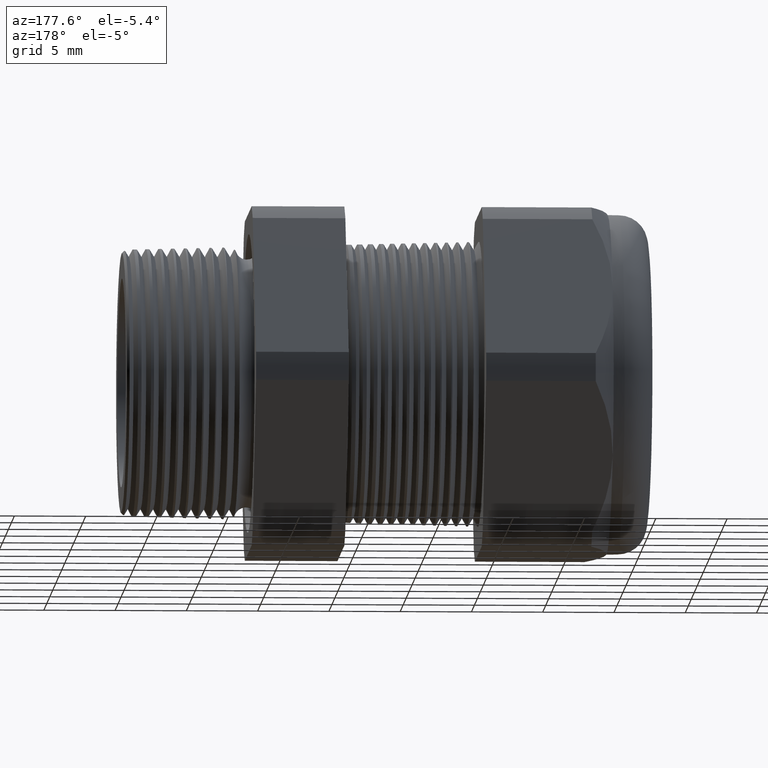
[diagram: clean part render]
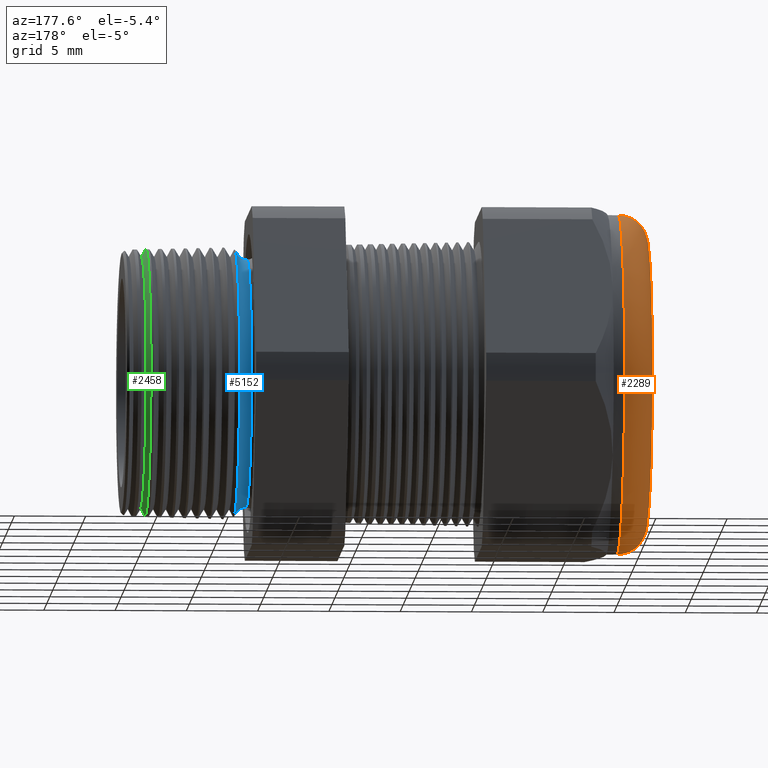
[diagram: same view with three faces highlighted in distinct colors, each labeled with its STEP entity id]
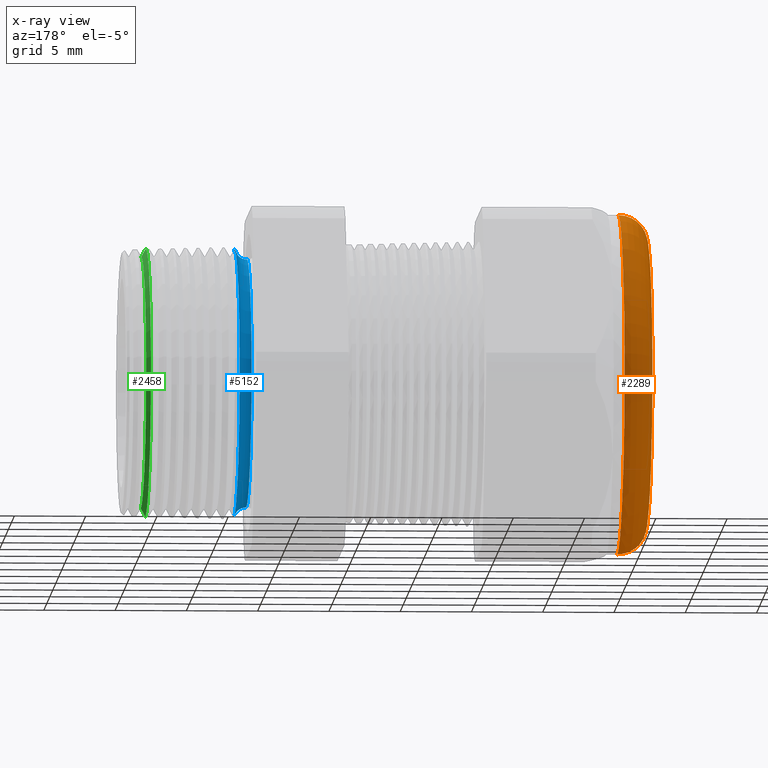
[diagram: x-ray of the same camera — body ghosted, the three highlighted faces saturated]
A machine part, auxiliary view with three faces highlighted in distinct colors.
The next image is the same camera in x-ray (body ghosted, the three faces saturated) — at least one of them is partly hidden behind the body in this view.
Their STEP definitions:

[orange] entity #2289 — the highlighted toroidal blend (fillet) surface has major radius 9.906 mm and minor (blend) radius 2.032 mm.
#2289 = ADVANCED_FACE ( 'NONE', ( #4230 ), #4229, .T. ) ;
#2290 = EDGE_LOOP ( 'NONE', ( #2295, #2299, #2353, #2358 ) ) ;
#2295 = ORIENTED_EDGE ( 'NONE', *, *, #2296, .F. ) ;
#2296 = EDGE_CURVE ( 'NONE', #2297, #2298, #4219, .T. ) ;
#2297 = VERTEX_POINT ( 'NONE', #4214 ) ;
#2298 = VERTEX_POINT ( 'NONE', #4213 ) ;
#2299 = ORIENTED_EDGE ( 'NONE', *, *, #2300, .T. ) ;
#2300 = EDGE_CURVE ( 'NONE', #2297, #2301, #4212, .T. ) ;
#2301 = VERTEX_POINT ( 'NONE', #4269 ) ;
#2353 = ORIENTED_EDGE ( 'NONE', *, *, #2355, .F. ) ;
#2355 = EDGE_CURVE ( 'NONE', #2356, #2301, #4357, .T. ) ;
#2356 = VERTEX_POINT ( 'NONE', #4352 ) ;
#2358 = ORIENTED_EDGE ( 'NONE', *, *, #2359, .F. ) ;
#2359 = EDGE_CURVE ( 'NONE', #2298, #2356, #4351, .T. ) ;
#4208 = DIRECTION ( 'NONE',  ( 0.0000000000000000000, -1.224646799147353900E-016, 1.000000000000000000 ) ) ;
#4209 = DIRECTION ( 'NONE',  ( 0.0000000000000000000, 1.000000000000000000, 1.224646799147353200E-016 ) ) ;
#4210 = CARTESIAN_POINT ( 'NONE',  ( -1.330000000000000100, 4.776122516674676800E-017, -0.3899999999999999600 ) ) ;
#4211 = AXIS2_PLACEMENT_3D ( 'NONE', #4210, #4209, #4208 ) ;
#4212 = CIRCLE ( 'NONE', #4211, 0.07999999999999996000 ) ;
#4213 = CARTESIAN_POINT ( 'NONE',  ( -1.330000000000000100, 5.755839955992558400E-017, 0.4699999999999999200 ) ) ;
#4214 = CARTESIAN_POINT ( 'NONE',  ( -1.330000000000000100, 0.0000000000000000000, -0.4699999999999999200 ) ) ;
#4215 = DIRECTION ( 'NONE',  ( 0.0000000000000000000, 0.0000000000000000000, 1.000000000000000000 ) ) ;
#4216 = DIRECTION ( 'NONE',  ( 1.000000000000000000, 0.0000000000000000000, 0.0000000000000000000 ) ) ;
#4217 = CARTESIAN_POINT ( 'NONE',  ( -1.330000000000000100, 0.0000000000000000000, 0.0000000000000000000 ) ) ;
#4218 = AXIS2_PLACEMENT_3D ( 'NONE', #4217, #4216, #4215 ) ;
#4219 = CIRCLE ( 'NONE', #4218, 0.4699999999999999200 ) ;
#4225 = DIRECTION ( 'NONE',  ( 0.0000000000000000000, 0.0000000000000000000, 1.000000000000000000 ) ) ;
#4226 = DIRECTION ( 'NONE',  ( -1.000000000000000000, 0.0000000000000000000, 0.0000000000000000000 ) ) ;
#4227 = CARTESIAN_POINT ( 'NONE',  ( -1.330000000000000100, 0.0000000000000000000, 0.0000000000000000000 ) ) ;
#4228 = AXIS2_PLACEMENT_3D ( 'NONE', #4227, #4226, #4225 ) ;
#4229 = TOROIDAL_SURFACE ( 'NONE', #4228, 0.3899999999999999600, 0.08000000000000000200 ) ;
#4230 = FACE_OUTER_BOUND ( 'NONE', #2290, .T. ) ;
#4269 = CARTESIAN_POINT ( 'NONE',  ( -1.409999999999999900, 5.265981236333617600E-017, -0.3899999999999999600 ) ) ;
#4347 = DIRECTION ( 'NONE',  ( 0.0000000000000000000, 0.0000000000000000000, -1.000000000000000000 ) ) ;
#4348 = DIRECTION ( 'NONE',  ( 0.0000000000000000000, -1.000000000000000000, 0.0000000000000000000 ) ) ;
#4349 = CARTESIAN_POINT ( 'NONE',  ( -1.330000000000000100, 0.0000000000000000000, 0.3899999999999999600 ) ) ;
#4350 = AXIS2_PLACEMENT_3D ( 'NONE', #4349, #4348, #4347 ) ;
#4351 = CIRCLE ( 'NONE', #4350, 0.07999999999999996000 ) ;
#4352 = CARTESIAN_POINT ( 'NONE',  ( -1.409999999999999900, 0.0000000000000000000, 0.3899999999999999600 ) ) ;
#4353 = DIRECTION ( 'NONE',  ( 0.0000000000000000000, 0.0000000000000000000, 1.000000000000000000 ) ) ;
#4354 = DIRECTION ( 'NONE',  ( -1.000000000000000000, 0.0000000000000000000, 0.0000000000000000000 ) ) ;
#4355 = CARTESIAN_POINT ( 'NONE',  ( -1.409999999999999900, 0.0000000000000000000, 0.0000000000000000000 ) ) ;
#4356 = AXIS2_PLACEMENT_3D ( 'NONE', #4355, #4354, #4353 ) ;
#4357 = CIRCLE ( 'NONE', #4356, 0.3899999999999999600 ) ;

[blue] entity #5152 — the highlighted toroidal blend (fillet) surface has major radius 9.6104 mm and minor (blend) radius 0.889 mm.
#6 = ORIENTED_EDGE ( 'NONE', *, *, #2125, .F. ) ;
#24 = VERTEX_POINT ( 'NONE', #3910 ) ;
#26 = VERTEX_POINT ( 'NONE', #3909 ) ;
#1925 = DIRECTION ( 'NONE',  ( 0.0000000000000000000, 0.0000000000000000000, -1.000000000000000000 ) ) ;
#1926 = DIRECTION ( 'NONE',  ( 0.0000000000000000000, -1.000000000000000000, 0.0000000000000000000 ) ) ;
#1927 = CARTESIAN_POINT ( 'NONE',  ( -0.3049999999999999400, 0.0000000000000000000, -0.3783605994438361000 ) ) ;
#1928 = AXIS2_PLACEMENT_3D ( 'NONE', #1927, #1926, #1925 ) ;
#1929 = CIRCLE ( 'NONE', #1928, 0.03499999999999996900 ) ;
#1931 = CARTESIAN_POINT ( 'NONE',  ( -0.3049999999999999400, 0.0000000000000000000, -0.3433605994438361200 ) ) ;
#1932 = CARTESIAN_POINT ( 'NONE',  ( -0.2708463023710456800, 4.539893538562447500E-017, -0.3707104400814421600 ) ) ;
#2030 = DIRECTION ( 'NONE',  ( 0.0000000000000000000, 0.0000000000000000000, -1.000000000000000000 ) ) ;
#2031 = DIRECTION ( 'NONE',  ( 1.000000000000000000, 0.0000000000000000000, 0.0000000000000000000 ) ) ;
#2032 = CARTESIAN_POINT ( 'NONE',  ( -0.3049999999999999400, 0.0000000000000000000, 0.0000000000000000000 ) ) ;
#2033 = AXIS2_PLACEMENT_3D ( 'NONE', #2032, #2031, #2030 ) ;
#2034 = TOROIDAL_SURFACE ( 'NONE', #2033, 0.3783605994438361000, 0.03499999999999994800 ) ;
#2035 = FACE_OUTER_BOUND ( 'NONE', #5143, .T. ) ;
#2125 = EDGE_CURVE ( 'NONE', #26, #24, #3899, .T. ) ;
#2581 = EDGE_CURVE ( 'NONE', #5096, #26, #4781, .T. ) ;
#2639 = ORIENTED_EDGE ( 'NONE', *, *, #2581, .F. ) ;
#2682 = EDGE_CURVE ( 'NONE', #5098, #24, #4976, .T. ) ;
#2705 = ORIENTED_EDGE ( 'NONE', *, *, #2682, .T. ) ;
#3895 = DIRECTION ( 'NONE',  ( 0.0000000000000000000, 1.224646799147352700E-016, 1.000000000000000000 ) ) ;
#3896 = DIRECTION ( 'NONE',  ( 0.0000000000000000000, 1.000000000000000000, -1.224646799147353200E-016 ) ) ;
#3897 = CARTESIAN_POINT ( 'NONE',  ( -0.3049999999999999400, 4.633580970323677100E-017, 0.3783605994438361000 ) ) ;
#3898 = AXIS2_PLACEMENT_3D ( 'NONE', #3897, #3896, #3895 ) ;
#3899 = CIRCLE ( 'NONE', #3898, 0.03499999999999996900 ) ;
#3909 = CARTESIAN_POINT ( 'NONE',  ( -0.2708463023710456800, 0.0000000000000000000, 0.3707104400814421600 ) ) ;
#3910 = CARTESIAN_POINT ( 'NONE',  ( -0.3049999999999999400, 4.204954590622103200E-017, 0.3433605994438361200 ) ) ;
#4777 = DIRECTION ( 'NONE',  ( 0.0000000000000000000, 0.0000000000000000000, 1.000000000000000000 ) ) ;
#4778 = DIRECTION ( 'NONE',  ( 1.000000000000000000, 0.0000000000000000000, 0.0000000000000000000 ) ) ;
#4779 = CARTESIAN_POINT ( 'NONE',  ( -0.2708463023710456800, 0.0000000000000000000, 0.0000000000000000000 ) ) ;
#4780 = AXIS2_PLACEMENT_3D ( 'NONE', #4779, #4778, #4777 ) ;
#4781 = CIRCLE ( 'NONE', #4780, 0.3707104400814421600 ) ;
#4973 = DIRECTION ( 'NONE',  ( 0.0000000000000000000, 0.0000000000000000000, -1.000000000000000000 ) ) ;
#4974 = DIRECTION ( 'NONE',  ( 1.000000000000000000, 0.0000000000000000000, 0.0000000000000000000 ) ) ;
#4975 = AXIS2_PLACEMENT_3D ( 'NONE', #4980, #4974, #4973 ) ;
#4976 = CIRCLE ( 'NONE', #4975, 0.3433605994438361200 ) ;
#4980 = CARTESIAN_POINT ( 'NONE',  ( -0.3049999999999999400, 0.0000000000000000000, 0.0000000000000000000 ) ) ;
#5096 = VERTEX_POINT ( 'NONE', #1932 ) ;
#5098 = VERTEX_POINT ( 'NONE', #1931 ) ;
#5102 = EDGE_CURVE ( 'NONE', #5096, #5098, #1929, .T. ) ;
#5143 = EDGE_LOOP ( 'NONE', ( #5147, #2705, #6, #2639 ) ) ;
#5147 = ORIENTED_EDGE ( 'NONE', *, *, #5102, .T. ) ;
#5152 = ADVANCED_FACE ( 'NONE', ( #2035 ), #2034, .F. ) ;

[green] entity #2458 — the highlighted conical surface has half-angle 61.5 deg.
#2144 = VERTEX_POINT ( 'NONE', #3979 ) ;
#2383 = EDGE_CURVE ( 'NONE', #2144, #2466, #4427, .T. ) ;
#2458 = ADVANCED_FACE ( 'NONE', ( #4581 ), #4580, .T. ) ;
#2459 = ORIENTED_EDGE ( 'NONE', *, *, #2383, .F. ) ;
#2463 = EDGE_LOOP ( 'NONE', ( #2459, #2467, #2470, #2476 ) ) ;
#2466 = VERTEX_POINT ( 'NONE', #4559 ) ;
#2467 = ORIENTED_EDGE ( 'NONE', *, *, #2468, .T. ) ;
#2468 = EDGE_CURVE ( 'NONE', #2144, #2469, #4558, .T. ) ;
#2469 = VERTEX_POINT ( 'NONE', #4554 ) ;
#2470 = ORIENTED_EDGE ( 'NONE', *, *, #2471, .T. ) ;
#2471 = EDGE_CURVE ( 'NONE', #2469, #2472, #4301, .T. ) ;
#2472 = VERTEX_POINT ( 'NONE', #4612 ) ;
#2476 = ORIENTED_EDGE ( 'NONE', *, *, #2477, .F. ) ;
#2477 = EDGE_CURVE ( 'NONE', #2466, #2472, #4606, .T. ) ;
#3979 = CARTESIAN_POINT ( 'NONE',  ( -0.01347073567907512900, 4.401627202238103200E-017, -0.3479174816500060800 ) ) ;
#4051 = AXIS2_PLACEMENT_3D ( 'NONE', #4615, #4614, #4613 ) ;
#4301 = CIRCLE ( 'NONE', #4051, 0.3709227921828554000 ) ;
#4369 = CARTESIAN_POINT ( 'NONE',  ( -0.01347073567907512900, 0.0000000000000000000, 0.0000000000000000000 ) ) ;
#4424 = DIRECTION ( 'NONE',  ( 0.0000000000000000000, 0.0000000000000000000, -1.000000000000000000 ) ) ;
#4425 = DIRECTION ( 'NONE',  ( 1.000000000000000000, 0.0000000000000000000, 0.0000000000000000000 ) ) ;
#4426 = AXIS2_PLACEMENT_3D ( 'NONE', #4369, #4425, #4424 ) ;
#4427 = CIRCLE ( 'NONE', #4426, 0.3479174816500060800 ) ;
#4554 = CARTESIAN_POINT ( 'NONE',  ( -0.02596160015483822700, 4.543821516315070200E-017, -0.3709227921828554000 ) ) ;
#4555 = DIRECTION ( 'NONE',  ( -0.4771587602596195100, 1.076240564057387400E-016, -0.8788171126619593900 ) ) ;
#4556 = VECTOR ( 'NONE', #4555, 39.37007874015748100 ) ;
#4557 = CARTESIAN_POINT ( 'NONE',  ( -0.02999999999999995400, 4.633580970323677100E-017, -0.3783605994438361000 ) ) ;
#4558 = LINE ( 'NONE', #4557, #4556 ) ;
#4559 = CARTESIAN_POINT ( 'NONE',  ( -0.01347073567907512900, 0.0000000000000000000, 0.3479174816500060800 ) ) ;
#4575 = DIRECTION ( 'NONE',  ( 0.0000000000000000000, 0.0000000000000000000, 1.000000000000000000 ) ) ;
#4576 = DIRECTION ( 'NONE',  ( -1.000000000000000000, 0.0000000000000000000, 0.0000000000000000000 ) ) ;
#4577 = CARTESIAN_POINT ( 'NONE',  ( -0.02999999999999995400, 0.0000000000000000000, 0.0000000000000000000 ) ) ;
#4578 = AXIS2_PLACEMENT_3D ( 'NONE', #4577, #4576, #4575 ) ;
#4580 = CONICAL_SURFACE ( 'NONE', #4578, 0.3783605994438361000, 1.073377489976500100 ) ;
#4581 = FACE_OUTER_BOUND ( 'NONE', #2463, .T. ) ;
#4603 = DIRECTION ( 'NONE',  ( -0.4771587602596195100, 0.0000000000000000000, 0.8788171126619593900 ) ) ;
#4604 = VECTOR ( 'NONE', #4603, 39.37007874015748100 ) ;
#4605 = CARTESIAN_POINT ( 'NONE',  ( -0.02999999999999995400, 0.0000000000000000000, 0.3783605994438361000 ) ) ;
#4606 = LINE ( 'NONE', #4605, #4604 ) ;
#4612 = CARTESIAN_POINT ( 'NONE',  ( -0.02596160015483822700, 0.0000000000000000000, 0.3709227921828554000 ) ) ;
#4613 = DIRECTION ( 'NONE',  ( 0.0000000000000000000, 0.0000000000000000000, 1.000000000000000000 ) ) ;
#4614 = DIRECTION ( 'NONE',  ( 1.000000000000000000, 0.0000000000000000000, 0.0000000000000000000 ) ) ;
#4615 = CARTESIAN_POINT ( 'NONE',  ( -0.02596160015483822700, 0.0000000000000000000, 0.0000000000000000000 ) ) ;